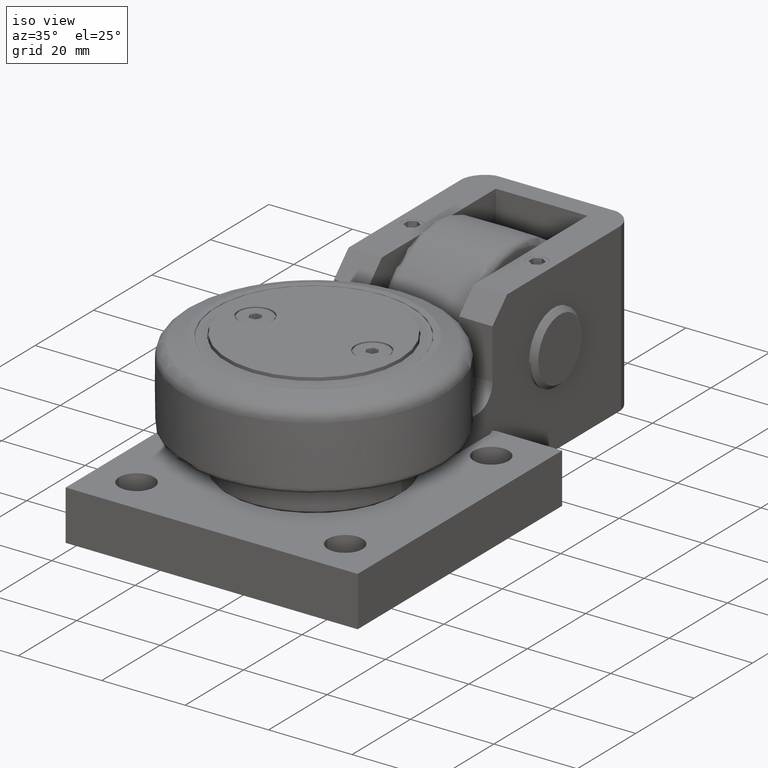
[diagram: clean part render]
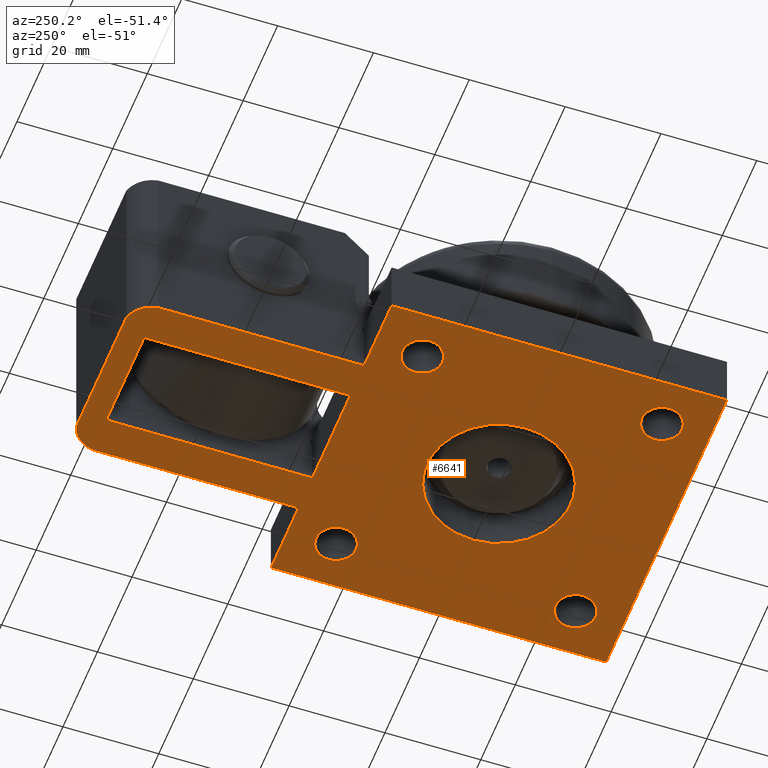
[diagram: tour spotlight — one face highlighted and labeled with its STEP entity id]
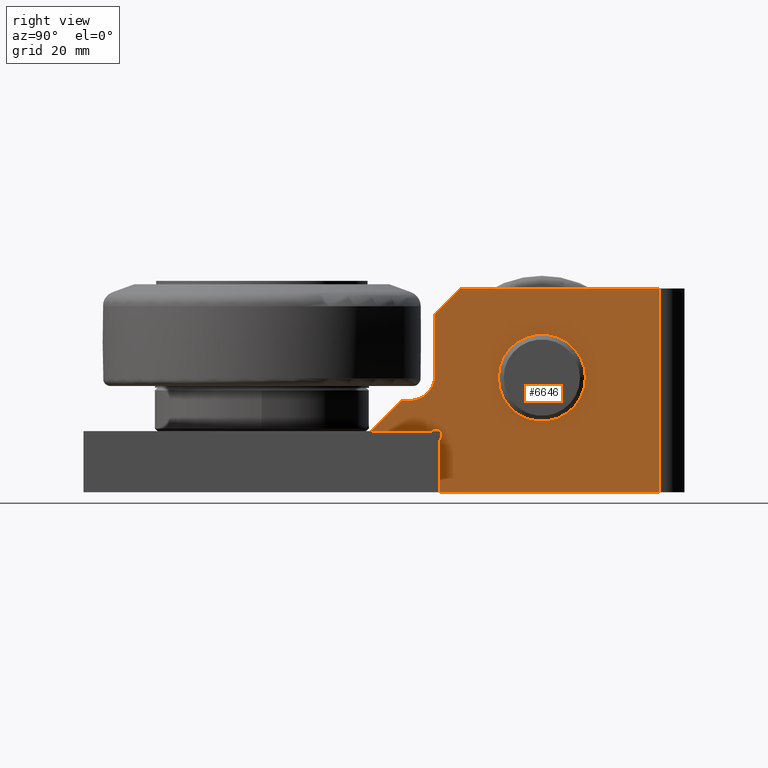
[diagram: tour spotlight — one face highlighted and labeled with its STEP entity id]
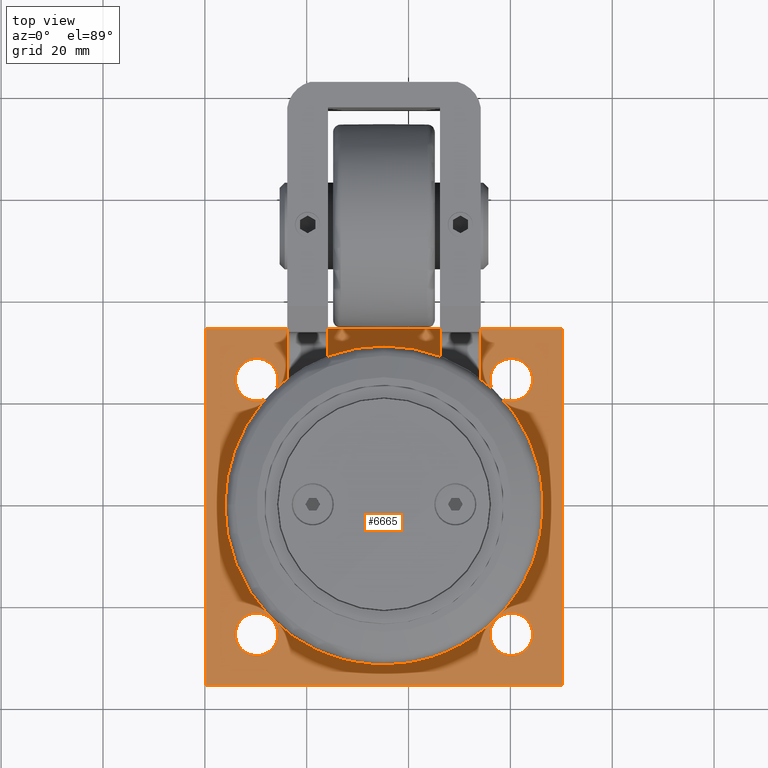
[diagram: tour spotlight — one face highlighted and labeled with its STEP entity id]
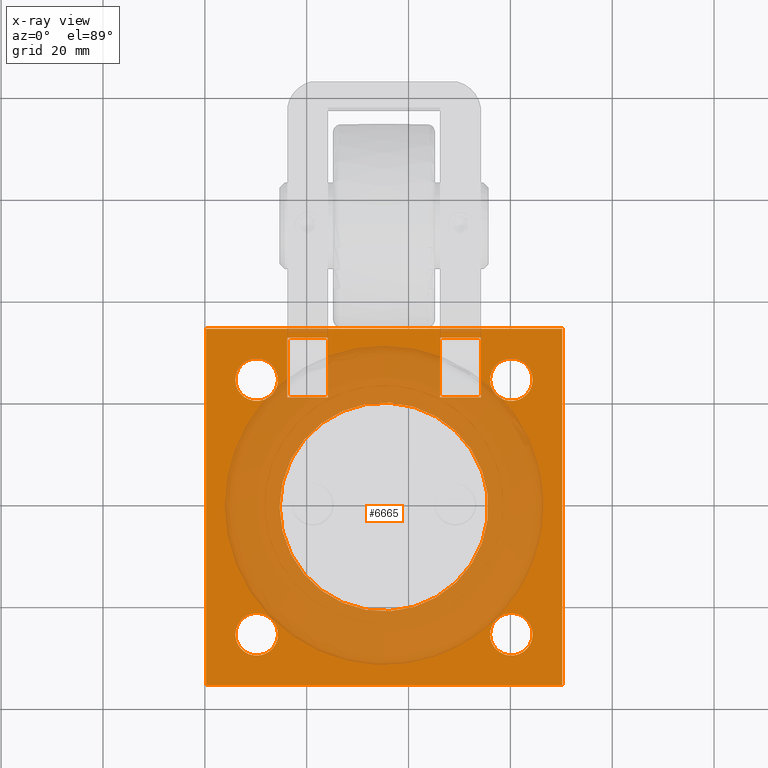
[diagram: x-ray of the same camera — body ghosted, this tour face saturated]
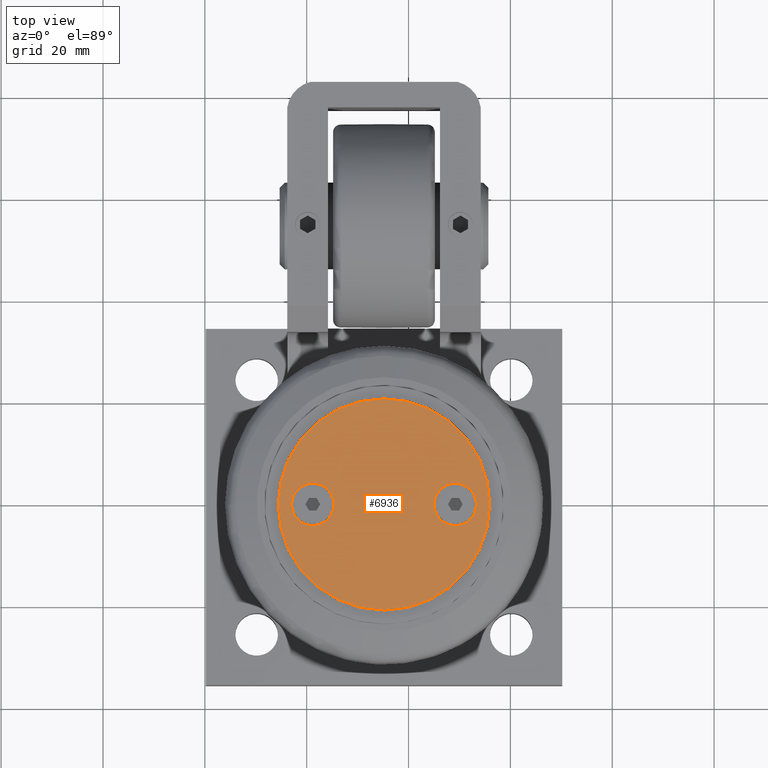
[diagram: tour spotlight — one face highlighted and labeled with its STEP entity id]
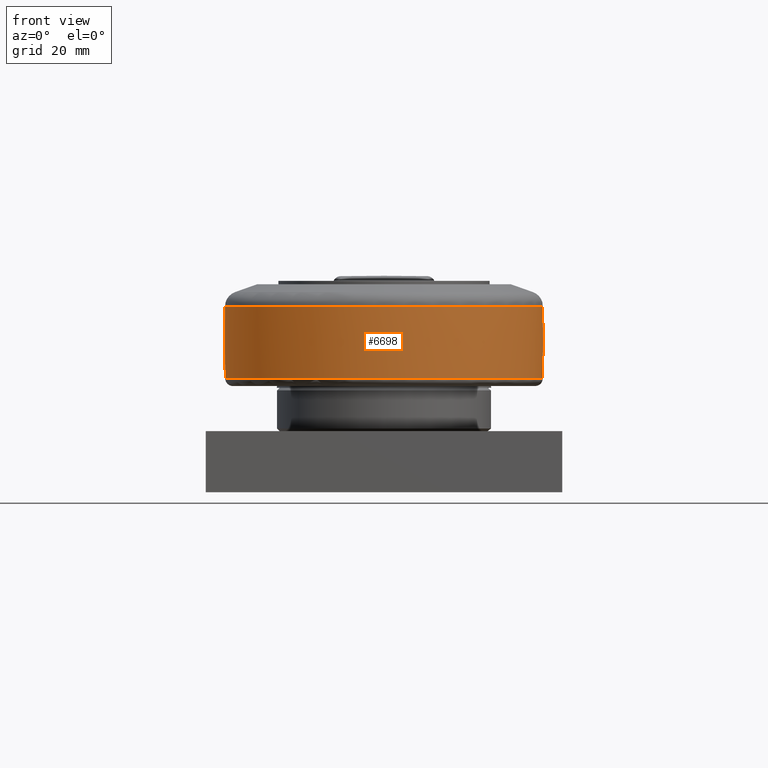
[diagram: tour spotlight — one face highlighted and labeled with its STEP entity id]
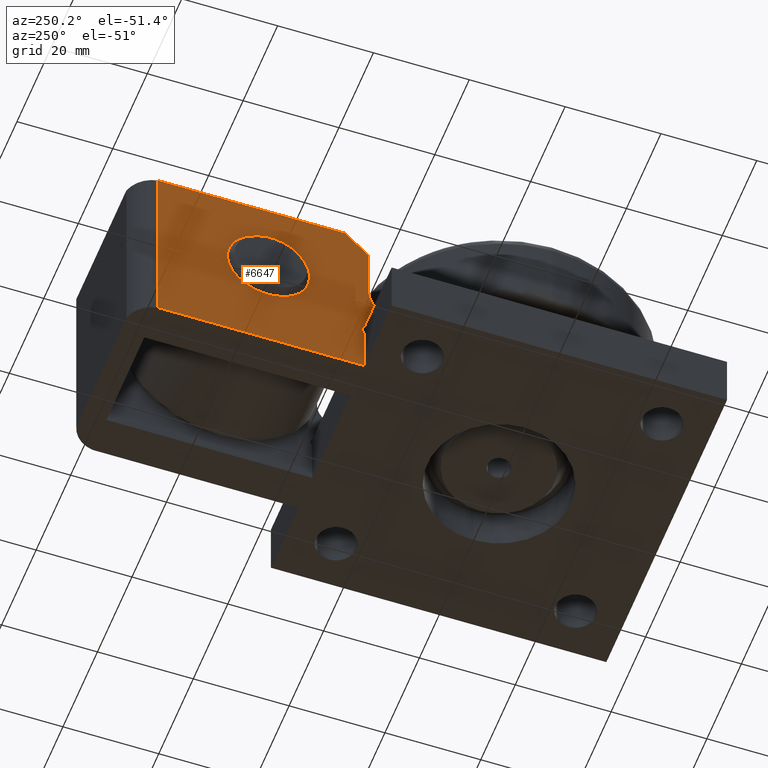
[diagram: tour spotlight — one face highlighted and labeled with its STEP entity id]
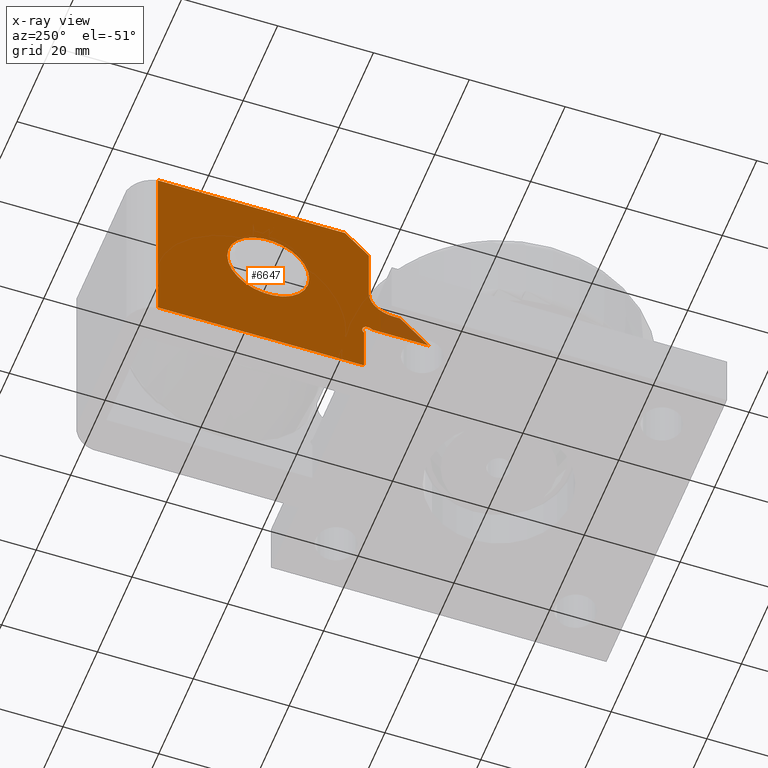
[diagram: x-ray of the same camera — body ghosted, this tour face saturated]
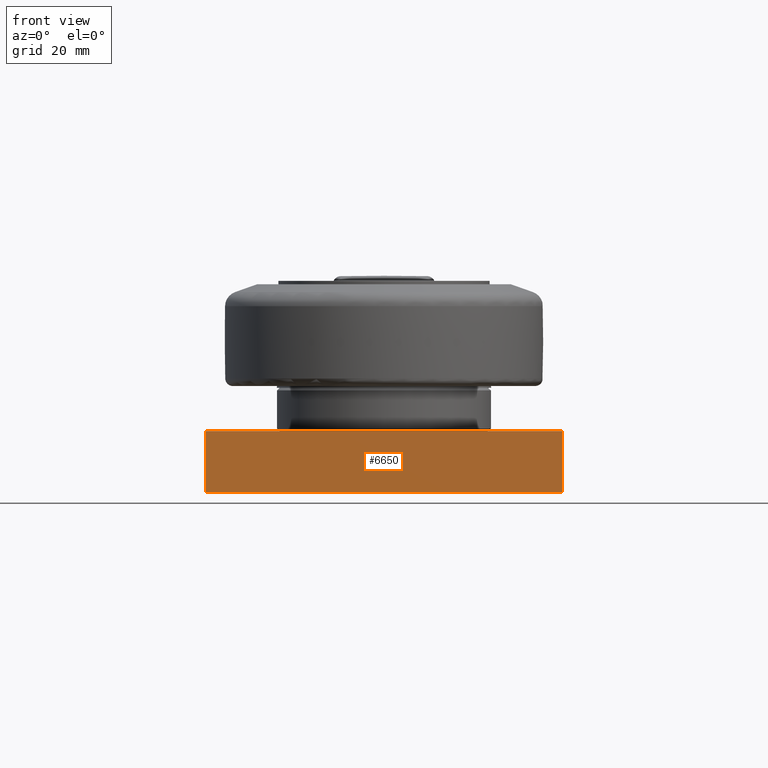
[diagram: tour spotlight — one face highlighted and labeled with its STEP entity id]
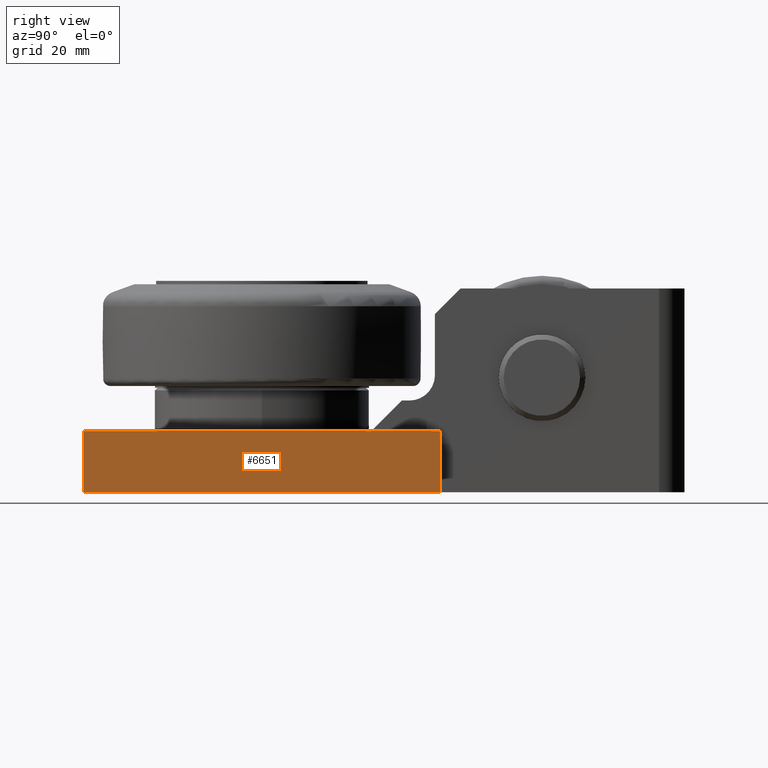
[diagram: tour spotlight — one face highlighted and labeled with its STEP entity id]
A machine part: a face-by-face anatomy tour. The part has 367 B-rep faces; the first image is the clean iso view, then the 8 largest visible faces are spotlighted one at a time (largest first), each with its STEP entity span.

Face 1 — auxiliary view, entity #6641. In plain terms, the highlighted planar face has unit normal (-0, 0, -1).
Definition (entity closure, byte-faithful):
#62=FACE_BOUND('',#738,.T.);
#63=FACE_BOUND('',#739,.T.);
#64=FACE_BOUND('',#740,.T.);
#65=FACE_BOUND('',#741,.T.);
#66=FACE_BOUND('',#742,.T.);
#67=FACE_BOUND('',#743,.T.);
#121=PLANE('',#7048);
#368=FACE_OUTER_BOUND('',#737,.T.);
#737=EDGE_LOOP('',(#4424,#4425,#4426,#4427,#4428,#4429,#4430,#4431,#4432,
#4433));
#738=EDGE_LOOP('',(#4434,#4435,#4436,#4437));
#739=EDGE_LOOP('',(#4438));
#740=EDGE_LOOP('',(#4439));
#741=EDGE_LOOP('',(#4440));
#742=EDGE_LOOP('',(#4441));
#743=EDGE_LOOP('',(#4442));
#1138=CIRCLE('',#7046,6.15624999999998);
#1140=CIRCLE('',#7049,6.15625);
#1141=CIRCLE('',#7050,15.);
#1142=CIRCLE('',#7051,4.188);
#1143=CIRCLE('',#7052,4.188);
#1144=CIRCLE('',#7053,4.188);
#1145=CIRCLE('',#7054,4.188);
#1902=LINE('',#10902,#2239);
#1903=LINE('',#10904,#2240);
#1904=LINE('',#10906,#2241);
#1905=LINE('',#10908,#2242);
#1906=LINE('',#10910,#2243);
#1907=LINE('',#10912,#2244);
#1908=LINE('',#10914,#2245);
#1909=LINE('',#10916,#2246);
#1910=LINE('',#10920,#2247);
#1911=LINE('',#10922,#2248);
#1912=LINE('',#10924,#2249);
#1913=LINE('',#10925,#2250);
#2239=VECTOR('',#8243,10.);
#2240=VECTOR('',#8244,10.);
#2241=VECTOR('',#8245,10.);
#2242=VECTOR('',#8246,10.);
#2243=VECTOR('',#8247,10.);
#2244=VECTOR('',#8248,10.);
#2245=VECTOR('',#8249,10.);
#2246=VECTOR('',#8250,10.);
#2247=VECTOR('',#8253,10.);
#2248=VECTOR('',#8254,10.);
#2249=VECTOR('',#8255,10.);
#2250=VECTOR('',#8256,10.);
#2588=VERTEX_POINT('',#10893);
#2589=VERTEX_POINT('',#10895);
#2591=VERTEX_POINT('',#10901);
#2592=VERTEX_POINT('',#10903);
#2593=VERTEX_POINT('',#10905);
#2594=VERTEX_POINT('',#10907);
#2595=VERTEX_POINT('',#10909);
#2596=VERTEX_POINT('',#10911);
#2597=VERTEX_POINT('',#10913);
#2598=VERTEX_POINT('',#10915);
#2599=VERTEX_POINT('',#10918);
#2600=VERTEX_POINT('',#10919);
#2601=VERTEX_POINT('',#10921);
#2602=VERTEX_POINT('',#10923);
#2603=VERTEX_POINT('',#10926);
#2604=VERTEX_POINT('',#10928);
#2605=VERTEX_POINT('',#10930);
#2606=VERTEX_POINT('',#10932);
#2607=VERTEX_POINT('',#10934);
#3260=EDGE_CURVE('',#2588,#2589,#1138,.T.);
#3263=EDGE_CURVE('',#2591,#2589,#1902,.T.);
#3264=EDGE_CURVE('',#2588,#2592,#1903,.T.);
#3265=EDGE_CURVE('',#2593,#2592,#1904,.T.);
#3266=EDGE_CURVE('',#2594,#2593,#1905,.T.);
#3267=EDGE_CURVE('',#2595,#2594,#1906,.T.);
#3268=EDGE_CURVE('',#2596,#2595,#1907,.T.);
#3269=EDGE_CURVE('',#2597,#2596,#1908,.T.);
#3270=EDGE_CURVE('',#2597,#2598,#1909,.T.);
#3271=EDGE_CURVE('',#2591,#2598,#1140,.T.);
#3272=EDGE_CURVE('',#2599,#2600,#1910,.T.);
#3273=EDGE_CURVE('',#2601,#2600,#1911,.T.);
#3274=EDGE_CURVE('',#2601,#2602,#1912,.T.);
#3275=EDGE_CURVE('',#2602,#2599,#1913,.T.);
#3276=EDGE_CURVE('',#2603,#2603,#1141,.T.);
#3277=EDGE_CURVE('',#2604,#2604,#1142,.T.);
#3278=EDGE_CURVE('',#2605,#2605,#1143,.T.);
#3279=EDGE_CURVE('',#2606,#2606,#1144,.T.);
#3280=EDGE_CURVE('',#2607,#2607,#1145,.T.);
#4424=ORIENTED_EDGE('',*,*,#3263,.T.);
#4425=ORIENTED_EDGE('',*,*,#3260,.F.);
#4426=ORIENTED_EDGE('',*,*,#3264,.T.);
#4427=ORIENTED_EDGE('',*,*,#3265,.F.);
#4428=ORIENTED_EDGE('',*,*,#3266,.F.);
#4429=ORIENTED_EDGE('',*,*,#3267,.F.);
#4430=ORIENTED_EDGE('',*,*,#3268,.F.);
#4431=ORIENTED_EDGE('',*,*,#3269,.F.);
#4432=ORIENTED_EDGE('',*,*,#3270,.T.);
#4433=ORIENTED_EDGE('',*,*,#3271,.F.);
#4434=ORIENTED_EDGE('',*,*,#3272,.T.);
#4435=ORIENTED_EDGE('',*,*,#3273,.F.);
#4436=ORIENTED_EDGE('',*,*,#3274,.T.);
#4437=ORIENTED_EDGE('',*,*,#3275,.T.);
#4438=ORIENTED_EDGE('',*,*,#3276,.T.);
#4439=ORIENTED_EDGE('',*,*,#3277,.T.);
#4440=ORIENTED_EDGE('',*,*,#3278,.T.);
#4441=ORIENTED_EDGE('',*,*,#3279,.T.);
#4442=ORIENTED_EDGE('',*,*,#3280,.T.);
#6641=ADVANCED_FACE('',(#368,#62,#63,#64,#65,#66,#67),#121,.T.);
#7046=AXIS2_PLACEMENT_3D('',#10896,#8236,#8237);
#7048=AXIS2_PLACEMENT_3D('',#10900,#8241,#8242);
#7049=AXIS2_PLACEMENT_3D('',#10917,#8251,#8252);
#7050=AXIS2_PLACEMENT_3D('',#10927,#8257,#8258);
#7051=AXIS2_PLACEMENT_3D('',#10929,#8259,#8260);
#7052=AXIS2_PLACEMENT_3D('',#10931,#8261,#8262);
#7053=AXIS2_PLACEMENT_3D('',#10933,#8263,#8264);
#7054=AXIS2_PLACEMENT_3D('',#10935,#8265,#8266);
#8236=DIRECTION('center_axis',(0.,0.,1.));
#8237=DIRECTION('ref_axis',(0.257073777313615,0.966391780292915,0.));
#8241=DIRECTION('center_axis',(-2.22044604925031E-16,1.11022302462515E-16,
-1.));
#8242=DIRECTION('ref_axis',(-1.,0.,2.22044604925031E-16));
#8243=DIRECTION('',(1.,3.40026252250433E-32,-3.0626842058625E-16));
#8244=DIRECTION('',(3.45126646034193E-31,-1.,0.));
#8245=DIRECTION('',(-1.,0.,0.));
#8246=DIRECTION('',(-2.53765262771464E-16,1.,0.));
#8247=DIRECTION('',(1.,0.,0.));
#8248=DIRECTION('',(3.07398826362428E-16,-1.,0.));
#8249=DIRECTION('',(-1.,0.,0.));
#8250=DIRECTION('',(-9.86076131526265E-32,1.,0.));
#8251=DIRECTION('center_axis',(0.,0.,1.));
#8252=DIRECTION('ref_axis',(-0.988038244318693,0.154209039176164,0.));
#8253=DIRECTION('',(9.86076131526265E-32,-1.,0.));
#8254=DIRECTION('',(-1.,0.,0.));
#8255=DIRECTION('',(-3.45126646034193E-31,1.,0.));
#8256=DIRECTION('',(-1.,-3.40026252250433E-32,3.0626842058625E-16));
#8257=DIRECTION('center_axis',(0.,0.,1.));
#8258=DIRECTION('ref_axis',(-1.,0.,0.));
#8259=DIRECTION('center_axis',(0.,0.,1.));
#8260=DIRECTION('ref_axis',(1.,0.,0.));
#8261=DIRECTION('center_axis',(0.,0.,1.));
#8262=DIRECTION('ref_axis',(1.,0.,0.));
#8263=DIRECTION('center_axis',(0.,0.,1.));
#8264=DIRECTION('ref_axis',(1.,0.,0.));
#8265=DIRECTION('center_axis',(0.,0.,1.));
#8266=DIRECTION('ref_axis',(1.,0.,0.));
#10893=CARTESIAN_POINT('',(14.1802505099281,57.526645715474,-20.));
#10895=CARTESIAN_POINT('',(9.68025050992806,62.526645715474,-20.));
#10896=CARTESIAN_POINT('Origin',(8.09764006834112,56.5772963180457,-20.));
#10900=CARTESIAN_POINT('Origin',(9.68025050992806,57.526645715474,-20.));
#10901=CARTESIAN_POINT('',(-19.3197494900719,62.526645715474,-20.));
#10902=CARTESIAN_POINT('',(-19.3197494900719,62.526645715474,-20.));
#10903=CARTESIAN_POINT('',(14.180250509928,14.5266457154739,-20.));
#10904=CARTESIAN_POINT('',(14.180250509928,15.5266457154739,-20.));
#10905=CARTESIAN_POINT('',(30.180250509928,14.5266457154739,-20.));
#10906=CARTESIAN_POINT('',(30.180250509928,14.5266457154739,-20.));
#10907=CARTESIAN_POINT('',(30.1802505099281,-55.4733542845261,-20.));
#10908=CARTESIAN_POINT('',(30.1802505099281,-55.4733542845261,-20.));
#10909=CARTESIAN_POINT('',(-39.8197494900719,-55.4733542845261,-20.));
#10910=CARTESIAN_POINT('',(-39.8197494900719,-55.4733542845261,-20.));
#10911=CARTESIAN_POINT('',(-39.819749490072,14.5266457154739,-20.));
#10912=CARTESIAN_POINT('',(-39.819749490072,14.5266457154739,-20.));
#10913=CARTESIAN_POINT('',(-23.8197494900719,14.5266457154739,-20.));
#10914=CARTESIAN_POINT('',(30.180250509928,14.5266457154739,-20.));
#10915=CARTESIAN_POINT('',(-23.8197494900719,57.526645715474,-20.));
#10916=CARTESIAN_POINT('',(-23.8197494900719,15.526645715474,-20.));
#10917=CARTESIAN_POINT('Origin',(-17.737139048485,56.5772963180457,-20.));
#10918=CARTESIAN_POINT('',(-15.8197494900719,57.526645715474,-20.));
#10919=CARTESIAN_POINT('',(-15.8197494900719,14.5266457154739,-20.));
#10920=CARTESIAN_POINT('',(-15.8197494900719,15.526645715474,-20.));
#10921=CARTESIAN_POINT('',(6.18025050992804,14.5266457154739,-20.));
#10922=CARTESIAN_POINT('',(30.180250509928,14.5266457154739,-20.));
#10923=CARTESIAN_POINT('',(6.18025050992803,57.526645715474,-20.));
#10924=CARTESIAN_POINT('',(6.18025050992804,15.5266457154739,-20.));
#10925=CARTESIAN_POINT('',(-19.3197494900719,57.526645715474,-20.));
#10926=CARTESIAN_POINT('',(10.180250509928,-20.4733542845261,-20.));
#10927=CARTESIAN_POINT('Origin',(-4.81974949007196,-20.4733542845261,-20.));
#10928=CARTESIAN_POINT('',(-34.007749490072,-45.4733542845261,-20.));
#10929=CARTESIAN_POINT('Origin',(-29.819749490072,-45.4733542845261,-20.));
#10930=CARTESIAN_POINT('',(15.992250509928,-45.4733542845261,-20.));
#10931=CARTESIAN_POINT('Origin',(20.180250509928,-45.4733542845261,-20.));
#10932=CARTESIAN_POINT('',(15.992250509928,4.52664571547393,-20.));
#10933=CARTESIAN_POINT('Origin',(20.180250509928,4.52664571547393,-20.));
#10934=CARTESIAN_POINT('',(-34.007749490072,4.52664571547393,-20.));
#10935=CARTESIAN_POINT('Origin',(-29.819749490072,4.52664571547393,-20.));

Face 2 — right view, entity #6646. In plain terms, the highlighted planar face has unit normal (-1, -0, 0).
Definition (entity closure, byte-faithful):
#71=FACE_BOUND('',#752,.T.);
#125=PLANE('',#7068);
#373=FACE_OUTER_BOUND('',#751,.T.);
#751=EDGE_LOOP('',(#4478,#4479,#4480,#4481,#4482,#4483,#4484,#4485,#4486,
#4487,#4488));
#752=EDGE_LOOP('',(#4489));
#1155=CIRCLE('',#7069,5.);
#1156=CIRCLE('',#7070,1.2);
#1157=CIRCLE('',#7071,8.55);
#1900=LINE('',#10894,#2237);
#1903=LINE('',#10904,#2240);
#1922=LINE('',#10955,#2259);
#1935=LINE('',#10997,#2272);
#1936=LINE('',#10999,#2273);
#1937=LINE('',#11001,#2274);
#1938=LINE('',#11005,#2275);
#1939=LINE('',#11007,#2276);
#1940=LINE('',#11009,#2277);
#2237=VECTOR('',#8235,10.);
#2240=VECTOR('',#8244,10.);
#2259=VECTOR('',#8281,10.);
#2272=VECTOR('',#8316,10.);
#2273=VECTOR('',#8317,10.);
#2274=VECTOR('',#8318,10.);
#2275=VECTOR('',#8321,10.);
#2276=VECTOR('',#8322,10.);
#2277=VECTOR('',#8323,10.);
#2587=VERTEX_POINT('',#10892);
#2588=VERTEX_POINT('',#10893);
#2592=VERTEX_POINT('',#10903);
#2615=VERTEX_POINT('',#10953);
#2633=VERTEX_POINT('',#10996);
#2634=VERTEX_POINT('',#10998);
#2635=VERTEX_POINT('',#11000);
#2636=VERTEX_POINT('',#11002);
#2637=VERTEX_POINT('',#11004);
#2638=VERTEX_POINT('',#11006);
#2639=VERTEX_POINT('',#11008);
#2640=VERTEX_POINT('',#11011);
#3259=EDGE_CURVE('',#2587,#2588,#1900,.T.);
#3264=EDGE_CURVE('',#2588,#2592,#1903,.T.);
#3290=EDGE_CURVE('',#2615,#2587,#1922,.T.);
#3311=EDGE_CURVE('',#2592,#2633,#1935,.T.);
#3312=EDGE_CURVE('',#2634,#2615,#1936,.T.);
#3313=EDGE_CURVE('',#2635,#2634,#1937,.T.);
#3314=EDGE_CURVE('',#2636,#2635,#1155,.T.);
#3315=EDGE_CURVE('',#2637,#2636,#1938,.T.);
#3316=EDGE_CURVE('',#2638,#2637,#1939,.T.);
#3317=EDGE_CURVE('',#2639,#2638,#1940,.T.);
#3318=EDGE_CURVE('',#2639,#2633,#1156,.T.);
#3319=EDGE_CURVE('',#2640,#2640,#1157,.T.);
#4478=ORIENTED_EDGE('',*,*,#3311,.F.);
#4479=ORIENTED_EDGE('',*,*,#3264,.F.);
#4480=ORIENTED_EDGE('',*,*,#3259,.F.);
#4481=ORIENTED_EDGE('',*,*,#3290,.F.);
#4482=ORIENTED_EDGE('',*,*,#3312,.F.);
#4483=ORIENTED_EDGE('',*,*,#3313,.F.);
#4484=ORIENTED_EDGE('',*,*,#3314,.F.);
#4485=ORIENTED_EDGE('',*,*,#3315,.F.);
#4486=ORIENTED_EDGE('',*,*,#3316,.F.);
#4487=ORIENTED_EDGE('',*,*,#3317,.F.);
#4488=ORIENTED_EDGE('',*,*,#3318,.T.);
#4489=ORIENTED_EDGE('',*,*,#3319,.T.);
#6646=ADVANCED_FACE('',(#373,#71),#125,.F.);
#7068=AXIS2_PLACEMENT_3D('',#10995,#8314,#8315);
#7069=AXIS2_PLACEMENT_3D('',#11003,#8319,#8320);
#7070=AXIS2_PLACEMENT_3D('',#11010,#8324,#8325);
#7071=AXIS2_PLACEMENT_3D('',#11012,#8326,#8327);
#8235=DIRECTION('',(-1.66533453693773E-16,0.,-1.));
#8244=DIRECTION('',(3.45126646034193E-31,-1.,0.));
#8281=DIRECTION('',(-2.30084430689461E-31,1.,4.44089209850062E-16));
#8314=DIRECTION('center_axis',(-1.,-3.45126646034193E-31,2.22044604925031E-16));
#8315=DIRECTION('ref_axis',(2.22044604925031E-16,0.,1.));
#8316=DIRECTION('',(2.22044604925031E-16,0.,1.));
#8317=DIRECTION('',(1.57009245868377E-16,0.707106781186547,0.707106781186548));
#8318=DIRECTION('',(2.22044604925031E-16,3.63345717150052E-16,1.));
#8319=DIRECTION('center_axis',(1.,3.28692043842088E-31,-2.22044604925031E-16));
#8320=DIRECTION('ref_axis',(-1.57009245868377E-16,0.707106781186549,-0.707106781186546));
#8321=DIRECTION('',(-2.30084430689461E-31,1.,4.44089209850062E-16));
#8322=DIRECTION('',(1.57009245868377E-16,0.707106781186547,0.707106781186548));
#8323=DIRECTION('',(2.30084430689461E-31,-1.,0.));
#8324=DIRECTION('center_axis',(-1.,-3.28692043842088E-31,2.22044604925031E-16));
#8325=DIRECTION('ref_axis',(-2.30084430689461E-31,1.,4.44089209850062E-16));
#8326=DIRECTION('center_axis',(-1.,-3.28692043842088E-31,2.22044604925031E-16));
#8327=DIRECTION('ref_axis',(2.30084430689461E-31,-1.,-4.44089209850062E-16));
#10892=CARTESIAN_POINT('',(14.1802505099281,57.526645715474,20.));
#10893=CARTESIAN_POINT('',(14.1802505099281,57.526645715474,-20.));
#10894=CARTESIAN_POINT('',(14.1802505099281,57.526645715474,20.));
#10903=CARTESIAN_POINT('',(14.180250509928,14.5266457154739,-20.));
#10904=CARTESIAN_POINT('',(14.180250509928,15.5266457154739,-20.));
#10953=CARTESIAN_POINT('',(14.180250509928,18.5266457154739,20.));
#10955=CARTESIAN_POINT('',(14.180250509928,4.52664571547394,20.));
#10995=CARTESIAN_POINT('Origin',(14.180250509928,16.526645715474,-18.));
#10996=CARTESIAN_POINT('',(14.180250509928,14.5266457154739,-9.69442719099995));
#10997=CARTESIAN_POINT('',(14.180250509928,14.5266457154739,-19.));
#10998=CARTESIAN_POINT('',(14.180250509928,13.526645715474,15.));
#10999=CARTESIAN_POINT('',(14.180250509928,15.7242263606352,17.1975806451613));
#11000=CARTESIAN_POINT('',(14.180250509928,13.5266457154739,2.99999999999998));
#11001=CARTESIAN_POINT('',(14.180250509928,13.5266457154739,-2.00000000000002));
#11002=CARTESIAN_POINT('',(14.180250509928,8.52664571547394,-2.00000000000002));
#11003=CARTESIAN_POINT('Origin',(14.180250509928,8.52664571547394,2.99999999999998));
#11004=CARTESIAN_POINT('',(14.180250509928,7.02664571547394,-2.00000000000002));
#11005=CARTESIAN_POINT('',(14.180250509928,4.52664571547394,-2.00000000000002));
#11006=CARTESIAN_POINT('',(14.180250509928,1.02664571547393,-8.));
#11007=CARTESIAN_POINT('',(14.180250509928,13.2242263606352,4.19758064516127));
#11008=CARTESIAN_POINT('',(14.180250509928,12.832218524474,-8.00000000000003));
#11009=CARTESIAN_POINT('',(14.180250509928,-7.97335428452607,-8.));
#11010=CARTESIAN_POINT('Origin',(14.180250509928,13.726645715474,-8.80000000000003));
#11011=CARTESIAN_POINT('',(14.180250509928,43.076645715474,2.49999999999998));
#11012=CARTESIAN_POINT('Origin',(14.180250509928,34.5266457154739,2.49999999999997));

Face 3 — top view, entity #6665. An x-ray twin of the same camera follows (body ghosted, this face saturated) — the face is partly hidden behind the body. In plain terms, the highlighted planar face has unit normal (0, 0, 1).
Definition (entity closure, byte-faithful):
#75=FACE_BOUND('',#775,.T.);
#76=FACE_BOUND('',#776,.T.);
#77=FACE_BOUND('',#777,.T.);
#78=FACE_BOUND('',#778,.T.);
#79=FACE_BOUND('',#779,.T.);
#80=FACE_BOUND('',#780,.T.);
#81=FACE_BOUND('',#781,.T.);
#135=PLANE('',#7107);
#392=FACE_OUTER_BOUND('',#774,.T.);
#774=EDGE_LOOP('',(#4587,#4588,#4589,#4590));
#775=EDGE_LOOP('',(#4591));
#776=EDGE_LOOP('',(#4592,#4593,#4594,#4595));
#777=EDGE_LOOP('',(#4596,#4597,#4598,#4599));
#778=EDGE_LOOP('',(#4600,#4601));
#779=EDGE_LOOP('',(#4602,#4603));
#780=EDGE_LOOP('',(#4604,#4605));
#781=EDGE_LOOP('',(#4606,#4607));
#1165=CIRCLE('',#7086,4.188);
#1166=CIRCLE('',#7087,4.188);
#1167=CIRCLE('',#7089,4.188);
#1168=CIRCLE('',#7090,4.188);
#1169=CIRCLE('',#7092,4.188);
#1170=CIRCLE('',#7093,4.188);
#1171=CIRCLE('',#7095,4.188);
#1172=CIRCLE('',#7096,4.188);
#1175=CIRCLE('',#7108,20.5);
#1924=LINE('',#10968,#2261);
#1929=LINE('',#10980,#2266);
#1940=LINE('',#11009,#2277);
#1942=LINE('',#11018,#2279);
#1951=LINE('',#11042,#2288);
#1952=LINE('',#11047,#2289);
#1954=LINE('',#11052,#2291);
#1957=LINE('',#11057,#2294);
#1959=LINE('',#11061,#2296);
#1970=LINE('',#11103,#2307);
#1973=LINE('',#11108,#2310);
#1974=LINE('',#11111,#2311);
#2261=VECTOR('',#8293,10.);
#2266=VECTOR('',#8302,10.);
#2277=VECTOR('',#8323,10.);
#2279=VECTOR('',#8333,10.);
#2288=VECTOR('',#8352,10.);
#2289=VECTOR('',#8359,10.);
#2291=VECTOR('',#8363,10.);
#2294=VECTOR('',#8368,10.);
#2296=VECTOR('',#8372,10.);
#2307=VECTOR('',#8425,10.);
#2310=VECTOR('',#8432,10.);
#2311=VECTOR('',#8435,10.);
#2620=VERTEX_POINT('',#10966);
#2621=VERTEX_POINT('',#10967);
#2625=VERTEX_POINT('',#10977);
#2626=VERTEX_POINT('',#10979);
#2638=VERTEX_POINT('',#11006);
#2639=VERTEX_POINT('',#11008);
#2642=VERTEX_POINT('',#11016);
#2652=VERTEX_POINT('',#11041);
#2654=VERTEX_POINT('',#11050);
#2655=VERTEX_POINT('',#11051);
#2656=VERTEX_POINT('',#11056);
#2657=VERTEX_POINT('',#11060);
#2658=VERTEX_POINT('',#11064);
#2659=VERTEX_POINT('',#11065);
#2660=VERTEX_POINT('',#11070);
#2661=VERTEX_POINT('',#11071);
#2662=VERTEX_POINT('',#11076);
#2663=VERTEX_POINT('',#11077);
#2664=VERTEX_POINT('',#11082);
#2665=VERTEX_POINT('',#11083);
#2668=VERTEX_POINT('',#11109);
#3296=EDGE_CURVE('',#2620,#2621,#1924,.T.);
#3302=EDGE_CURVE('',#2626,#2625,#1929,.T.);
#3317=EDGE_CURVE('',#2639,#2638,#1940,.T.);
#3322=EDGE_CURVE('',#2620,#2642,#1942,.T.);
#3335=EDGE_CURVE('',#2652,#2621,#1951,.T.);
#3338=EDGE_CURVE('',#2626,#2638,#1952,.T.);
#3340=EDGE_CURVE('',#2654,#2655,#1954,.T.);
#3343=EDGE_CURVE('',#2656,#2654,#1957,.T.);
#3345=EDGE_CURVE('',#2655,#2657,#1959,.T.);
#3347=EDGE_CURVE('',#2658,#2659,#1165,.T.);
#3348=EDGE_CURVE('',#2659,#2658,#1166,.T.);
#3350=EDGE_CURVE('',#2660,#2661,#1167,.T.);
#3351=EDGE_CURVE('',#2661,#2660,#1168,.T.);
#3353=EDGE_CURVE('',#2662,#2663,#1169,.T.);
#3354=EDGE_CURVE('',#2663,#2662,#1170,.T.);
#3356=EDGE_CURVE('',#2664,#2665,#1171,.T.);
#3357=EDGE_CURVE('',#2665,#2664,#1172,.T.);
#3366=EDGE_CURVE('',#2642,#2652,#1970,.T.);
#3369=EDGE_CURVE('',#2657,#2656,#1973,.T.);
#3370=EDGE_CURVE('',#2668,#2668,#1175,.T.);
#3371=EDGE_CURVE('',#2625,#2639,#1974,.T.);
#4587=ORIENTED_EDGE('',*,*,#3345,.F.);
#4588=ORIENTED_EDGE('',*,*,#3340,.F.);
#4589=ORIENTED_EDGE('',*,*,#3343,.F.);
#4590=ORIENTED_EDGE('',*,*,#3369,.F.);
#4591=ORIENTED_EDGE('',*,*,#3370,.T.);
#4592=ORIENTED_EDGE('',*,*,#3322,.T.);
#4593=ORIENTED_EDGE('',*,*,#3366,.T.);
#4594=ORIENTED_EDGE('',*,*,#3335,.T.);
#4595=ORIENTED_EDGE('',*,*,#3296,.F.);
#4596=ORIENTED_EDGE('',*,*,#3302,.T.);
#4597=ORIENTED_EDGE('',*,*,#3371,.T.);
#4598=ORIENTED_EDGE('',*,*,#3317,.T.);
#4599=ORIENTED_EDGE('',*,*,#3338,.F.);
#4600=ORIENTED_EDGE('',*,*,#3356,.T.);
#4601=ORIENTED_EDGE('',*,*,#3357,.T.);
#4602=ORIENTED_EDGE('',*,*,#3353,.T.);
#4603=ORIENTED_EDGE('',*,*,#3354,.T.);
#4604=ORIENTED_EDGE('',*,*,#3350,.T.);
#4605=ORIENTED_EDGE('',*,*,#3351,.T.);
#4606=ORIENTED_EDGE('',*,*,#3347,.T.);
#4607=ORIENTED_EDGE('',*,*,#3348,.T.);
#6665=ADVANCED_FACE('',(#392,#75,#76,#77,#78,#79,#80,#81),#135,.T.);
#7086=AXIS2_PLACEMENT_3D('',#11066,#8376,#8377);
#7087=AXIS2_PLACEMENT_3D('',#11067,#8378,#8379);
#7089=AXIS2_PLACEMENT_3D('',#11072,#8383,#8384);
#7090=AXIS2_PLACEMENT_3D('',#11073,#8385,#8386);
#7092=AXIS2_PLACEMENT_3D('',#11078,#8390,#8391);
#7093=AXIS2_PLACEMENT_3D('',#11079,#8392,#8393);
#7095=AXIS2_PLACEMENT_3D('',#11084,#8397,#8398);
#7096=AXIS2_PLACEMENT_3D('',#11085,#8399,#8400);
#7107=AXIS2_PLACEMENT_3D('',#11107,#8430,#8431);
#7108=AXIS2_PLACEMENT_3D('',#11110,#8433,#8434);
#8293=DIRECTION('',(1.,9.86076131526265E-32,0.));
#8302=DIRECTION('',(-3.28692043842088E-31,1.,0.));
#8323=DIRECTION('',(2.30084430689461E-31,-1.,0.));
#8333=DIRECTION('',(-9.86076131526264E-32,1.,0.));
#8352=DIRECTION('',(9.86076131526265E-32,-1.,0.));
#8359=DIRECTION('',(1.,2.30084430689461E-31,0.));
#8363=DIRECTION('',(-1.,0.,0.));
#8368=DIRECTION('',(2.53765262771464E-16,-1.,0.));
#8372=DIRECTION('',(-3.07398826362428E-16,1.,0.));
#8376=DIRECTION('center_axis',(0.,0.,-1.));
#8377=DIRECTION('ref_axis',(1.,0.,0.));
#8378=DIRECTION('center_axis',(0.,0.,-1.));
#8379=DIRECTION('ref_axis',(1.,0.,0.));
#8383=DIRECTION('center_axis',(0.,0.,-1.));
#8384=DIRECTION('ref_axis',(1.,0.,0.));
#8385=DIRECTION('center_axis',(0.,0.,-1.));
#8386=DIRECTION('ref_axis',(1.,0.,0.));
#8390=DIRECTION('center_axis',(0.,0.,-1.));
#8391=DIRECTION('ref_axis',(1.,0.,0.));
#8392=DIRECTION('center_axis',(0.,0.,-1.));
#8393=DIRECTION('ref_axis',(1.,0.,0.));
#8397=DIRECTION('center_axis',(0.,0.,-1.));
#8398=DIRECTION('ref_axis',(1.,0.,0.));
#8399=DIRECTION('center_axis',(0.,0.,-1.));
#8400=DIRECTION('ref_axis',(1.,0.,0.));
#8425=DIRECTION('',(1.,9.86076131526264E-32,2.95822839457879E-31));
#8430=DIRECTION('center_axis',(0.,0.,1.));
#8431=DIRECTION('ref_axis',(1.,0.,0.));
#8432=DIRECTION('',(1.,0.,0.));
#8433=DIRECTION('center_axis',(0.,0.,-1.));
#8434=DIRECTION('ref_axis',(1.,2.46519032881566E-32,-6.72813895595651E-17));
#8435=DIRECTION('',(1.,3.28692043842088E-31,-2.22044604925031E-16));
#10966=CARTESIAN_POINT('',(-23.8197494900719,1.02664571547397,-8.));
#10967=CARTESIAN_POINT('',(-15.8197494900719,1.02664571547397,-8.));
#10968=CARTESIAN_POINT('',(-10.3197494900719,1.02664571547397,-8.));
#10977=CARTESIAN_POINT('',(6.18025050992804,12.832218524474,-8.00000000000002));
#10979=CARTESIAN_POINT('',(6.18025050992804,1.02664571547393,-8.));
#10980=CARTESIAN_POINT('',(6.18025050992804,6.13148442515136,-8.));
#11006=CARTESIAN_POINT('',(14.180250509928,1.02664571547393,-8.));
#11008=CARTESIAN_POINT('',(14.180250509928,12.832218524474,-8.00000000000003));
#11009=CARTESIAN_POINT('',(14.180250509928,-7.97335428452607,-8.));
#11016=CARTESIAN_POINT('',(-23.8197494900719,12.8322185244741,-8.00000000000001));
#11018=CARTESIAN_POINT('',(-23.8197494900719,6.13148442515137,-8.));
#11041=CARTESIAN_POINT('',(-15.8197494900719,12.8322185244741,-8.00000000000001));
#11042=CARTESIAN_POINT('',(-15.8197494900719,-7.97335428452605,-8.));
#11047=CARTESIAN_POINT('',(4.68025050992804,1.02664571547393,-8.));
#11050=CARTESIAN_POINT('',(30.1802505099281,-55.4733542845261,-8.));
#11051=CARTESIAN_POINT('',(-39.8197494900719,-55.4733542845261,-8.));
#11052=CARTESIAN_POINT('',(-39.8197494900719,-55.4733542845261,-8.));
#11056=CARTESIAN_POINT('',(30.180250509928,14.5266457154739,-8.));
#11057=CARTESIAN_POINT('',(30.1802505099281,-55.4733542845261,-8.));
#11060=CARTESIAN_POINT('',(-39.819749490072,14.5266457154739,-8.));
#11061=CARTESIAN_POINT('',(-39.819749490072,14.5266457154739,-8.));
#11064=CARTESIAN_POINT('',(-25.631749490072,4.52664571547393,-8.));
#11065=CARTESIAN_POINT('',(-34.007749490072,4.52664571547393,-8.00000000000001));
#11066=CARTESIAN_POINT('Origin',(-29.819749490072,4.52664571547393,-8.00000000000001));
#11067=CARTESIAN_POINT('Origin',(-29.819749490072,4.52664571547393,-8.00000000000001));
#11070=CARTESIAN_POINT('',(24.368250509928,4.52664571547393,-8.));
#11071=CARTESIAN_POINT('',(15.992250509928,4.52664571547393,-8.00000000000001));
#11072=CARTESIAN_POINT('Origin',(20.180250509928,4.52664571547393,-8.00000000000001));
#11073=CARTESIAN_POINT('Origin',(20.180250509928,4.52664571547393,-8.00000000000001));
#11076=CARTESIAN_POINT('',(24.368250509928,-45.4733542845261,-8.));
#11077=CARTESIAN_POINT('',(15.992250509928,-45.4733542845261,-8.00000000000001));
#11078=CARTESIAN_POINT('Origin',(20.180250509928,-45.4733542845261,-8.00000000000001));
#11079=CARTESIAN_POINT('Origin',(20.180250509928,-45.4733542845261,-8.00000000000001));
#11082=CARTESIAN_POINT('',(-25.631749490072,-45.4733542845261,-8.));
#11083=CARTESIAN_POINT('',(-34.007749490072,-45.4733542845261,-8.00000000000001));
#11084=CARTESIAN_POINT('Origin',(-29.819749490072,-45.4733542845261,-8.00000000000001));
#11085=CARTESIAN_POINT('Origin',(-29.819749490072,-45.4733542845261,-8.00000000000001));
#11103=CARTESIAN_POINT('',(-23.8197494900719,12.8322185244741,-8.));
#11107=CARTESIAN_POINT('Origin',(-4.81974949007196,-20.4733542845261,-8.));
#11108=CARTESIAN_POINT('',(30.180250509928,14.5266457154739,-8.));
#11109=CARTESIAN_POINT('',(-25.319749490072,-20.4733542845261,-8.00000000000001));
#11110=CARTESIAN_POINT('Origin',(-4.81974949007196,-20.4733542845261,-8.));
#11111=CARTESIAN_POINT('',(6.18025050992804,12.8322185244741,-8.));

Face 4 — top view, entity #6936. In plain terms, the highlighted planar face has unit normal (0, -0, 1).
Definition (entity closure, byte-faithful):
#97=FACE_BOUND('',#1068,.T.);
#98=FACE_BOUND('',#1069,.T.);
#299=PLANE('',#7994);
#663=FACE_OUTER_BOUND('',#1067,.T.);
#1067=EDGE_LOOP('',(#6255,#6256));
#1068=EDGE_LOOP('',(#6257));
#1069=EDGE_LOOP('',(#6258));
#1792=CIRCLE('',#7995,20.75);
#1793=CIRCLE('',#7996,20.75);
#1794=CIRCLE('',#7997,4.15);
#1795=CIRCLE('',#7998,4.15);
#3101=VERTEX_POINT('',#12842);
#3102=VERTEX_POINT('',#12843);
#3103=VERTEX_POINT('',#12846);
#3104=VERTEX_POINT('',#12848);
#4170=EDGE_CURVE('',#3101,#3102,#1792,.T.);
#4171=EDGE_CURVE('',#3102,#3101,#1793,.T.);
#4172=EDGE_CURVE('',#3103,#3103,#1794,.T.);
#4173=EDGE_CURVE('',#3104,#3104,#1795,.T.);
#6255=ORIENTED_EDGE('',*,*,#4170,.T.);
#6256=ORIENTED_EDGE('',*,*,#4171,.T.);
#6257=ORIENTED_EDGE('',*,*,#4172,.T.);
#6258=ORIENTED_EDGE('',*,*,#4173,.T.);
#6936=ADVANCED_FACE('',(#663,#97,#98),#299,.T.);
#7994=AXIS2_PLACEMENT_3D('',#12841,#10371,#10372);
#7995=AXIS2_PLACEMENT_3D('',#12844,#10373,#10374);
#7996=AXIS2_PLACEMENT_3D('',#12845,#10375,#10376);
#7997=AXIS2_PLACEMENT_3D('',#12847,#10377,#10378);
#7998=AXIS2_PLACEMENT_3D('',#12849,#10379,#10380);
#10371=DIRECTION('center_axis',(0.,-1.21543267145725E-63,1.));
#10372=DIRECTION('ref_axis',(-1.,-1.21543267145725E-63,-1.47727657884572E-126));
#10373=DIRECTION('center_axis',(0.,-1.21543267145725E-63,1.));
#10374=DIRECTION('ref_axis',(1.21543267145725E-63,-1.,-1.21543267145725E-63));
#10375=DIRECTION('center_axis',(0.,-1.21543267145725E-63,1.));
#10376=DIRECTION('ref_axis',(1.21543267145725E-63,-1.,-1.21543267145725E-63));
#10377=DIRECTION('center_axis',(0.,1.21543267145725E-63,-1.));
#10378=DIRECTION('ref_axis',(1.,1.21543267145725E-63,1.47727657884572E-126));
#10379=DIRECTION('center_axis',(0.,1.21543267145725E-63,-1.));
#10380=DIRECTION('ref_axis',(1.,1.21543267145725E-63,1.47727657884572E-126));
#12841=CARTESIAN_POINT('Origin',(-4.81974949007196,-30.8483542845261,21.5));
#12842=CARTESIAN_POINT('',(-4.81974949007196,-41.2233542845261,21.5));
#12843=CARTESIAN_POINT('',(-4.81974949007196,0.276645715473931,21.5));
#12844=CARTESIAN_POINT('Origin',(-4.81974949007196,-20.4733542845261,21.5));
#12845=CARTESIAN_POINT('Origin',(-4.81974949007196,-20.4733542845261,21.5));
#12846=CARTESIAN_POINT('',(-22.969749490072,-20.4733542845261,21.5));
#12847=CARTESIAN_POINT('Origin',(-18.819749490072,-20.4733542845261,21.5));
#12848=CARTESIAN_POINT('',(5.03025050992805,-20.4733542845261,21.5));
#12849=CARTESIAN_POINT('Origin',(9.18025050992805,-20.4733542845261,21.5));

Face 5 — front view, entity #6698. In plain terms, the highlighted face is a freeform B-spline surface patch.
Definition (entity closure, byte-faithful):
#17=(
BOUNDED_SURFACE()
B_SPLINE_SURFACE(2,2,((#11649,#11650,#11651,#11652,#11653,#11654,#11655,
#11656,#11657),(#11658,#11659,#11660,#11661,#11662,#11663,#11664,#11665,
#11666),(#11667,#11668,#11669,#11670,#11671,#11672,#11673,#11674,#11675)),
 .UNSPECIFIED.,.F.,.T.,.F.)
B_SPLINE_SURFACE_WITH_KNOTS((3,3),(3,2,2,2,3),(-0.0170519798157734,0.0113406771335565),
(-3.14159265358979,-1.5707963267949,0.,1.5707963267949,3.14159265358979),
 .UNSPECIFIED.)
GEOMETRIC_REPRESENTATION_ITEM()
RATIONAL_B_SPLINE_SURFACE(((1.,0.707106781186548,1.,0.707106781186548,1.,
0.707106781186548,1.,0.707106781186548,1.),(0.999899233821269,0.707035528738253,
0.999899233821269,0.707035528738253,0.999899233821269,0.707035528738253,
0.999899233821269,0.707035528738253,0.999899233821269),(1.,0.707106781186548,
1.,0.707106781186548,1.,0.707106781186548,1.,0.707106781186548,1.)))
REPRESENTATION_ITEM('')
SURFACE()
);
#425=FACE_OUTER_BOUND('',#821,.T.);
#821=EDGE_LOOP('',(#4936,#4937,#4938,#4939,#4940,#4941));
#1317=CIRCLE('',#7281,31.1773092574736);
#1319=CIRCLE('',#7283,31.1773092574736);
#1323=CIRCLE('',#7288,31.2178476051361);
#1324=CIRCLE('',#7289,31.2178476051361);
#1325=CIRCLE('',#7290,500.);
#2841=VERTEX_POINT('',#11636);
#2842=VERTEX_POINT('',#11637);
#2846=VERTEX_POINT('',#11676);
#2847=VERTEX_POINT('',#11677);
#3566=EDGE_CURVE('',#2841,#2842,#1317,.T.);
#3568=EDGE_CURVE('',#2842,#2841,#1319,.T.);
#3573=EDGE_CURVE('',#2846,#2847,#1323,.T.);
#3574=EDGE_CURVE('',#2847,#2846,#1324,.T.);
#3575=EDGE_CURVE('',#2847,#2842,#1325,.T.);
#4936=ORIENTED_EDGE('',*,*,#3573,.F.);
#4937=ORIENTED_EDGE('',*,*,#3574,.F.);
#4938=ORIENTED_EDGE('',*,*,#3575,.T.);
#4939=ORIENTED_EDGE('',*,*,#3566,.F.);
#4940=ORIENTED_EDGE('',*,*,#3568,.F.);
#4941=ORIENTED_EDGE('',*,*,#3575,.F.);
#6698=ADVANCED_FACE('',(#425),#17,.F.);
#7281=AXIS2_PLACEMENT_3D('',#11638,#8823,#8824);
#7283=AXIS2_PLACEMENT_3D('',#11640,#8827,#8828);
#7288=AXIS2_PLACEMENT_3D('',#11678,#8838,#8839);
#7289=AXIS2_PLACEMENT_3D('',#11679,#8840,#8841);
#7290=AXIS2_PLACEMENT_3D('',#11680,#8842,#8843);
#8823=DIRECTION('center_axis',(0.,1.21543267145725E-63,-1.));
#8824=DIRECTION('ref_axis',(-1.22460635382238E-16,-1.,-1.21543267145725E-63));
#8827=DIRECTION('center_axis',(0.,1.21543267145725E-63,-1.));
#8828=DIRECTION('ref_axis',(-1.22460635382238E-16,-1.,-1.21543267145725E-63));
#8838=DIRECTION('center_axis',(0.,-1.21543267145725E-63,1.));
#8839=DIRECTION('ref_axis',(-1.22460635382238E-16,-1.,-1.21543267145725E-63));
#8840=DIRECTION('center_axis',(0.,-1.21543267145725E-63,1.));
#8841=DIRECTION('ref_axis',(-1.22460635382238E-16,-1.,-1.21543267145725E-63));
#8842=DIRECTION('center_axis',(1.4210854715202E-16,-1.,-1.21543267145725E-63));
#8843=DIRECTION('ref_axis',(-1.,-1.4210854715202E-16,0.));
#11636=CARTESIAN_POINT('',(-4.81974949007195,10.7039549729475,2.32442326980943));
#11637=CARTESIAN_POINT('',(-35.9970587475456,-20.4733542845261,2.32442326980943));
#11638=CARTESIAN_POINT('Origin',(-4.81974949007196,-20.4733542845261,2.32442326980943));
#11640=CARTESIAN_POINT('Origin',(-4.81974949007196,-20.4733542845261,2.32442326980943));
#11649=CARTESIAN_POINT('Ctrl Pts',(-35.9970587475455,-20.4733542845261,
2.32442326980941));
#11650=CARTESIAN_POINT('Ctrl Pts',(-35.9970587475455,-51.6506635419996,
2.32442326980941));
#11651=CARTESIAN_POINT('Ctrl Pts',(-4.81974949007196,-51.6506635419997,
2.32442326980941));
#11652=CARTESIAN_POINT('Ctrl Pts',(26.3575597674016,-51.6506635419996,2.32442326980941));
#11653=CARTESIAN_POINT('Ctrl Pts',(26.3575597674016,-20.4733542845261,2.32442326980941));
#11654=CARTESIAN_POINT('Ctrl Pts',(26.3575597674016,10.7039549729475,2.32442326980941));
#11655=CARTESIAN_POINT('Ctrl Pts',(-4.81974949007196,10.7039549729475,2.32442326980941));
#11656=CARTESIAN_POINT('Ctrl Pts',(-35.9970587475455,10.7039549729475,2.32442326980941));
#11657=CARTESIAN_POINT('Ctrl Pts',(-35.9970587475455,-20.4733542845261,
2.32442326980941));
#11658=CARTESIAN_POINT('Ctrl Pts',(-36.1180987666492,-20.4733542845261,
9.42203237919678));
#11659=CARTESIAN_POINT('Ctrl Pts',(-36.1180987666492,-51.7717035611033,
9.42203237919678));
#11660=CARTESIAN_POINT('Ctrl Pts',(-4.81974949007196,-51.7717035611034,
9.42203237919678));
#11661=CARTESIAN_POINT('Ctrl Pts',(26.4785997865053,-51.7717035611033,9.42203237919678));
#11662=CARTESIAN_POINT('Ctrl Pts',(26.4785997865053,-20.4733542845261,9.42203237919678));
#11663=CARTESIAN_POINT('Ctrl Pts',(26.4785997865053,10.8249949920512,9.42203237919678));
#11664=CARTESIAN_POINT('Ctrl Pts',(-4.81974949007196,10.8249949920512,9.42203237919678));
#11665=CARTESIAN_POINT('Ctrl Pts',(-36.1180987666492,10.8249949920512,9.42203237919678));
#11666=CARTESIAN_POINT('Ctrl Pts',(-36.1180987666492,-20.4733542845261,
9.42203237919678));
#11667=CARTESIAN_POINT('Ctrl Pts',(-36.0375970952081,-20.4733542845261,
16.5202170229475));
#11668=CARTESIAN_POINT('Ctrl Pts',(-36.0375970952081,-51.6912018896623,
16.5202170229475));
#11669=CARTESIAN_POINT('Ctrl Pts',(-4.81974949007196,-51.6912018896623,
16.5202170229475));
#11670=CARTESIAN_POINT('Ctrl Pts',(26.3980981150642,-51.6912018896623,16.5202170229475));
#11671=CARTESIAN_POINT('Ctrl Pts',(26.3980981150642,-20.4733542845261,16.5202170229475));
#11672=CARTESIAN_POINT('Ctrl Pts',(26.3980981150642,10.7444933206101,16.5202170229475));
#11673=CARTESIAN_POINT('Ctrl Pts',(-4.81974949007196,10.7444933206101,16.5202170229475));
#11674=CARTESIAN_POINT('Ctrl Pts',(-36.0375970952081,10.7444933206101,16.5202170229475));
#11675=CARTESIAN_POINT('Ctrl Pts',(-36.0375970952081,-20.4733542845261,
16.5202170229475));
#11676=CARTESIAN_POINT('',(-4.81974949007196,10.7444933206101,16.5202170229474));
#11677=CARTESIAN_POINT('',(-36.0375970952081,-20.4733542845261,16.5202170229474));
#11678=CARTESIAN_POINT('Origin',(-4.81974949007196,-20.4733542845261,16.5202170229474));
#11679=CARTESIAN_POINT('Origin',(-4.81974949007196,-20.4733542845261,16.5202170229474));
#11680=CARTESIAN_POINT('Origin',(463.930250509928,-20.473354284526,10.85));

Face 6 — auxiliary view, entity #6647. An x-ray twin of the same camera follows (body ghosted, this face saturated) — the face is partly hidden behind the body. In plain terms, the highlighted planar face has unit normal (1, 0, 0).
Definition (entity closure, byte-faithful):
#72=FACE_BOUND('',#754,.T.);
#126=PLANE('',#7072);
#374=FACE_OUTER_BOUND('',#753,.T.);
#753=EDGE_LOOP('',(#4490,#4491,#4492,#4493,#4494,#4495,#4496,#4497,#4498,
#4499,#4500));
#754=EDGE_LOOP('',(#4501,#4502));
#1158=CIRCLE('',#7073,1.2);
#1159=CIRCLE('',#7074,5.);
#1160=CIRCLE('',#7075,8.55);
#1161=CIRCLE('',#7076,8.55);
#1909=LINE('',#10916,#2246);
#1914=LINE('',#10938,#2251);
#1916=LINE('',#10944,#2253);
#1927=LINE('',#10973,#2264);
#1941=LINE('',#11015,#2278);
#1942=LINE('',#11018,#2279);
#1943=LINE('',#11020,#2280);
#1944=LINE('',#11024,#2281);
#1945=LINE('',#11025,#2282);
#2246=VECTOR('',#8250,10.);
#2251=VECTOR('',#8269,10.);
#2253=VECTOR('',#8275,10.);
#2264=VECTOR('',#8296,10.);
#2278=VECTOR('',#8330,10.);
#2279=VECTOR('',#8333,10.);
#2280=VECTOR('',#8334,10.);
#2281=VECTOR('',#8337,10.);
#2282=VECTOR('',#8338,10.);
#2597=VERTEX_POINT('',#10913);
#2598=VERTEX_POINT('',#10915);
#2608=VERTEX_POINT('',#10937);
#2610=VERTEX_POINT('',#10943);
#2620=VERTEX_POINT('',#10966);
#2623=VERTEX_POINT('',#10971);
#2641=VERTEX_POINT('',#11014);
#2642=VERTEX_POINT('',#11016);
#2643=VERTEX_POINT('',#11019);
#2644=VERTEX_POINT('',#11021);
#2645=VERTEX_POINT('',#11023);
#2646=VERTEX_POINT('',#11026);
#2647=VERTEX_POINT('',#11027);
#3270=EDGE_CURVE('',#2597,#2598,#1909,.T.);
#3281=EDGE_CURVE('',#2598,#2608,#1914,.T.);
#3284=EDGE_CURVE('',#2608,#2610,#1916,.T.);
#3299=EDGE_CURVE('',#2620,#2623,#1927,.T.);
#3320=EDGE_CURVE('',#2641,#2597,#1941,.T.);
#3321=EDGE_CURVE('',#2641,#2642,#1158,.T.);
#3322=EDGE_CURVE('',#2620,#2642,#1942,.T.);
#3323=EDGE_CURVE('',#2643,#2623,#1943,.T.);
#3324=EDGE_CURVE('',#2644,#2643,#1159,.T.);
#3325=EDGE_CURVE('',#2645,#2644,#1944,.T.);
#3326=EDGE_CURVE('',#2610,#2645,#1945,.T.);
#3327=EDGE_CURVE('',#2646,#2647,#1160,.T.);
#3328=EDGE_CURVE('',#2647,#2646,#1161,.T.);
#4490=ORIENTED_EDGE('',*,*,#3320,.F.);
#4491=ORIENTED_EDGE('',*,*,#3321,.T.);
#4492=ORIENTED_EDGE('',*,*,#3322,.F.);
#4493=ORIENTED_EDGE('',*,*,#3299,.T.);
#4494=ORIENTED_EDGE('',*,*,#3323,.F.);
#4495=ORIENTED_EDGE('',*,*,#3324,.F.);
#4496=ORIENTED_EDGE('',*,*,#3325,.F.);
#4497=ORIENTED_EDGE('',*,*,#3326,.F.);
#4498=ORIENTED_EDGE('',*,*,#3284,.F.);
#4499=ORIENTED_EDGE('',*,*,#3281,.F.);
#4500=ORIENTED_EDGE('',*,*,#3270,.F.);
#4501=ORIENTED_EDGE('',*,*,#3327,.T.);
#4502=ORIENTED_EDGE('',*,*,#3328,.T.);
#6647=ADVANCED_FACE('',(#374,#72),#126,.F.);
#7072=AXIS2_PLACEMENT_3D('',#11013,#8328,#8329);
#7073=AXIS2_PLACEMENT_3D('',#11017,#8331,#8332);
#7074=AXIS2_PLACEMENT_3D('',#11022,#8335,#8336);
#7075=AXIS2_PLACEMENT_3D('',#11028,#8339,#8340);
#7076=AXIS2_PLACEMENT_3D('',#11029,#8341,#8342);
#8250=DIRECTION('',(-9.86076131526265E-32,1.,0.));
#8269=DIRECTION('',(-1.11022302462516E-16,0.,1.));
#8275=DIRECTION('',(9.86076131526265E-32,-1.,-4.44089209850062E-16));
#8296=DIRECTION('',(0.,0.707106781186548,0.707106781186547));
#8328=DIRECTION('center_axis',(1.,9.86076131526265E-32,2.95822839457879E-31));
#8329=DIRECTION('ref_axis',(2.95822839457879E-31,0.,-1.));
#8330=DIRECTION('',(2.95822839457879E-31,0.,-1.));
#8331=DIRECTION('center_axis',(1.,9.86076131526264E-32,2.95822839457879E-31));
#8332=DIRECTION('ref_axis',(-9.86076131526265E-32,1.,4.44089209850062E-16));
#8333=DIRECTION('',(-9.86076131526264E-32,1.,0.));
#8334=DIRECTION('',(9.86076131526265E-32,-1.,-4.44089209850062E-16));
#8335=DIRECTION('center_axis',(-1.,-9.86076131526264E-32,-2.95822839457879E-31));
#8336=DIRECTION('ref_axis',(1.39452223873683E-31,0.707106781186549,-0.707106781186546));
#8337=DIRECTION('',(2.95822839457879E-31,-3.63345717150052E-16,-1.));
#8338=DIRECTION('',(2.78904447747368E-31,-0.707106781186547,-0.707106781186548));
#8339=DIRECTION('center_axis',(1.,9.86076131526264E-32,2.95822839457879E-31));
#8340=DIRECTION('ref_axis',(9.86076131526265E-32,-1.,-4.44089209850062E-16));
#8341=DIRECTION('center_axis',(1.,9.86076131526264E-32,2.95822839457879E-31));
#8342=DIRECTION('ref_axis',(9.86076131526265E-32,-1.,-4.44089209850062E-16));
#10913=CARTESIAN_POINT('',(-23.8197494900719,14.5266457154739,-20.));
#10915=CARTESIAN_POINT('',(-23.8197494900719,57.526645715474,-20.));
#10916=CARTESIAN_POINT('',(-23.8197494900719,15.526645715474,-20.));
#10937=CARTESIAN_POINT('',(-23.8197494900719,57.526645715474,20.));
#10938=CARTESIAN_POINT('',(-23.8197494900719,57.526645715474,-20.));
#10943=CARTESIAN_POINT('',(-23.8197494900719,18.526645715474,20.));
#10944=CARTESIAN_POINT('',(-23.8197494900719,4.52664571547397,20.));
#10966=CARTESIAN_POINT('',(-23.8197494900719,1.02664571547397,-8.));
#10971=CARTESIAN_POINT('',(-23.8197494900719,7.02664571547397,-2.00000000000001));
#10973=CARTESIAN_POINT('',(-23.8197494900719,1.02664571547397,-8.));
#11013=CARTESIAN_POINT('Origin',(-23.8197494900719,16.526645715474,-18.));
#11014=CARTESIAN_POINT('',(-23.8197494900719,14.526645715474,-9.69442719099993));
#11015=CARTESIAN_POINT('',(-23.8197494900719,14.5266457154739,-10.2096774193548));
#11016=CARTESIAN_POINT('',(-23.8197494900719,12.8322185244741,-8.00000000000001));
#11017=CARTESIAN_POINT('Origin',(-23.8197494900719,13.726645715474,-8.80000000000001));
#11018=CARTESIAN_POINT('',(-23.8197494900719,6.13148442515137,-8.));
#11019=CARTESIAN_POINT('',(-23.8197494900719,8.52664571547398,-2.));
#11020=CARTESIAN_POINT('',(-23.8197494900719,4.52664571547397,-2.00000000000001));
#11021=CARTESIAN_POINT('',(-23.8197494900719,13.526645715474,2.99999999999999));
#11022=CARTESIAN_POINT('Origin',(-23.8197494900719,8.52664571547398,3.));
#11023=CARTESIAN_POINT('',(-23.8197494900719,13.526645715474,15.));
#11024=CARTESIAN_POINT('',(-23.8197494900719,13.526645715474,-2.));
#11025=CARTESIAN_POINT('',(-23.8197494900719,15.7242263606353,17.1975806451613));
#11026=CARTESIAN_POINT('',(-23.8197494900719,25.976645715474,2.49999999999999));
#11027=CARTESIAN_POINT('',(-23.8197494900719,43.076645715474,2.49999999999999));
#11028=CARTESIAN_POINT('Origin',(-23.8197494900719,34.526645715474,2.49999999999999));
#11029=CARTESIAN_POINT('Origin',(-23.8197494900719,34.526645715474,2.49999999999999));

Face 7 — front view, entity #6650. In plain terms, the highlighted planar face has unit normal (0, -1, 0).
Definition (entity closure, byte-faithful):
#129=PLANE('',#7082);
#377=FACE_OUTER_BOUND('',#758,.T.);
#758=EDGE_LOOP('',(#4519,#4520,#4521,#4522));
#1906=LINE('',#10910,#2243);
#1954=LINE('',#11052,#2291);
#1955=LINE('',#11053,#2292);
#1956=LINE('',#11054,#2293);
#2243=VECTOR('',#8247,10.);
#2291=VECTOR('',#8363,10.);
#2292=VECTOR('',#8364,10.);
#2293=VECTOR('',#8365,10.);
#2594=VERTEX_POINT('',#10907);
#2595=VERTEX_POINT('',#10909);
#2654=VERTEX_POINT('',#11050);
#2655=VERTEX_POINT('',#11051);
#3267=EDGE_CURVE('',#2595,#2594,#1906,.T.);
#3340=EDGE_CURVE('',#2654,#2655,#1954,.T.);
#3341=EDGE_CURVE('',#2595,#2655,#1955,.T.);
#3342=EDGE_CURVE('',#2594,#2654,#1956,.T.);
#4519=ORIENTED_EDGE('',*,*,#3340,.T.);
#4520=ORIENTED_EDGE('',*,*,#3341,.F.);
#4521=ORIENTED_EDGE('',*,*,#3267,.T.);
#4522=ORIENTED_EDGE('',*,*,#3342,.T.);
#6650=ADVANCED_FACE('',(#377),#129,.T.);
#7082=AXIS2_PLACEMENT_3D('',#11049,#8361,#8362);
#8247=DIRECTION('',(1.,0.,0.));
#8361=DIRECTION('center_axis',(0.,-1.,0.));
#8362=DIRECTION('ref_axis',(0.,0.,-1.));
#8363=DIRECTION('',(-1.,0.,0.));
#8364=DIRECTION('',(0.,0.,1.));
#8365=DIRECTION('',(0.,0.,1.));
#10907=CARTESIAN_POINT('',(30.1802505099281,-55.4733542845261,-20.));
#10909=CARTESIAN_POINT('',(-39.8197494900719,-55.4733542845261,-20.));
#10910=CARTESIAN_POINT('',(-39.8197494900719,-55.4733542845261,-20.));
#11049=CARTESIAN_POINT('Origin',(30.1802505099281,-55.4733542845261,-20.));
#11050=CARTESIAN_POINT('',(30.1802505099281,-55.4733542845261,-8.));
#11051=CARTESIAN_POINT('',(-39.8197494900719,-55.4733542845261,-8.));
#11052=CARTESIAN_POINT('',(-39.8197494900719,-55.4733542845261,-8.));
#11053=CARTESIAN_POINT('',(-39.8197494900719,-55.4733542845261,-20.));
#11054=CARTESIAN_POINT('',(30.1802505099281,-55.4733542845261,-20.));

Face 8 — right view, entity #6651. In plain terms, the highlighted planar face has unit normal (1, 0, 0).
Definition (entity closure, byte-faithful):
#130=PLANE('',#7083);
#378=FACE_OUTER_BOUND('',#759,.T.);
#759=EDGE_LOOP('',(#4523,#4524,#4525,#4526));
#1905=LINE('',#10908,#2242);
#1956=LINE('',#11054,#2293);
#1957=LINE('',#11057,#2294);
#1958=LINE('',#11058,#2295);
#2242=VECTOR('',#8246,10.);
#2293=VECTOR('',#8365,10.);
#2294=VECTOR('',#8368,10.);
#2295=VECTOR('',#8369,10.);
#2593=VERTEX_POINT('',#10905);
#2594=VERTEX_POINT('',#10907);
#2654=VERTEX_POINT('',#11050);
#2656=VERTEX_POINT('',#11056);
#3266=EDGE_CURVE('',#2594,#2593,#1905,.T.);
#3342=EDGE_CURVE('',#2594,#2654,#1956,.T.);
#3343=EDGE_CURVE('',#2656,#2654,#1957,.T.);
#3344=EDGE_CURVE('',#2593,#2656,#1958,.T.);
#4523=ORIENTED_EDGE('',*,*,#3343,.T.);
#4524=ORIENTED_EDGE('',*,*,#3342,.F.);
#4525=ORIENTED_EDGE('',*,*,#3266,.T.);
#4526=ORIENTED_EDGE('',*,*,#3344,.T.);
#6651=ADVANCED_FACE('',(#378),#130,.T.);
#7083=AXIS2_PLACEMENT_3D('',#11055,#8366,#8367);
#8246=DIRECTION('',(-2.53765262771464E-16,1.,0.));
#8365=DIRECTION('',(0.,0.,1.));
#8366=DIRECTION('center_axis',(1.,2.53765262771464E-16,0.));
#8367=DIRECTION('ref_axis',(0.,0.,-1.));
#8368=DIRECTION('',(2.53765262771464E-16,-1.,0.));
#8369=DIRECTION('',(0.,0.,1.));
#10905=CARTESIAN_POINT('',(30.180250509928,14.5266457154739,-20.));
#10907=CARTESIAN_POINT('',(30.1802505099281,-55.4733542845261,-20.));
#10908=CARTESIAN_POINT('',(30.1802505099281,-55.4733542845261,-20.));
#11050=CARTESIAN_POINT('',(30.1802505099281,-55.4733542845261,-8.));
#11054=CARTESIAN_POINT('',(30.1802505099281,-55.4733542845261,-20.));
#11055=CARTESIAN_POINT('Origin',(30.180250509928,14.5266457154739,-20.));
#11056=CARTESIAN_POINT('',(30.180250509928,14.5266457154739,-8.));
#11057=CARTESIAN_POINT('',(30.1802505099281,-55.4733542845261,-8.));
#11058=CARTESIAN_POINT('',(30.180250509928,14.5266457154739,-20.));